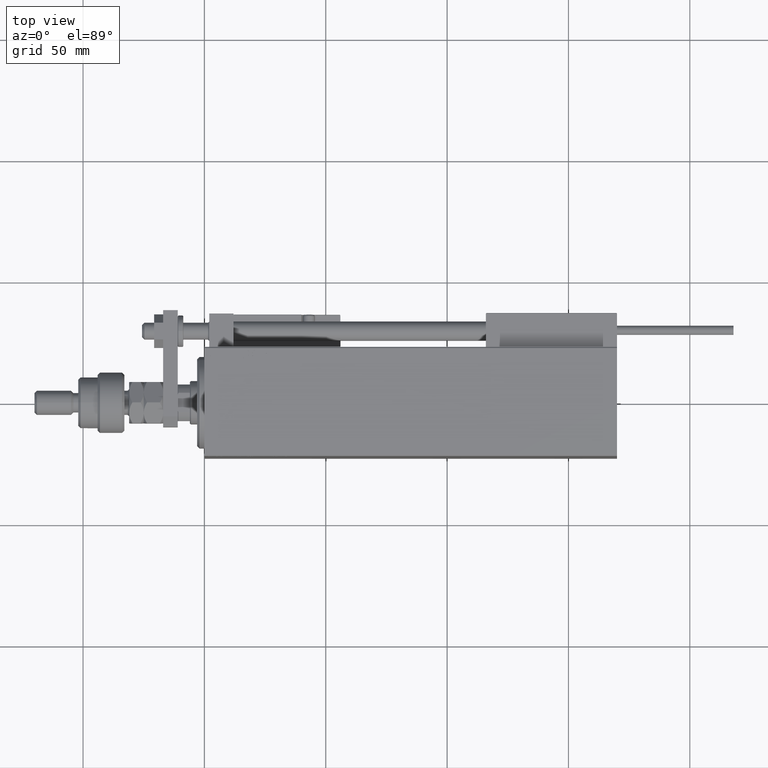
[diagram: clean part render]
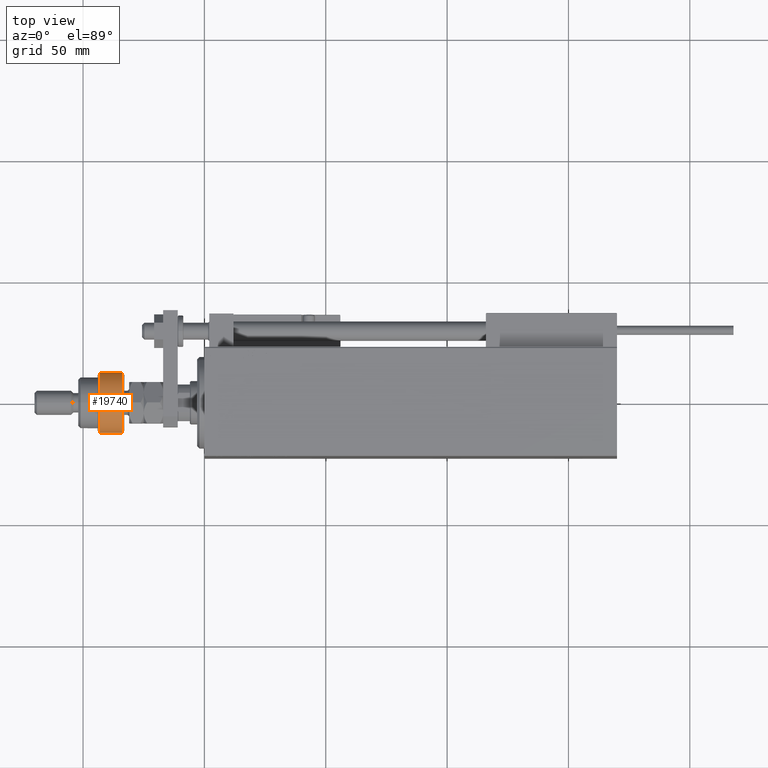
[diagram: same view with one face highlighted and labeled with its STEP entity id]
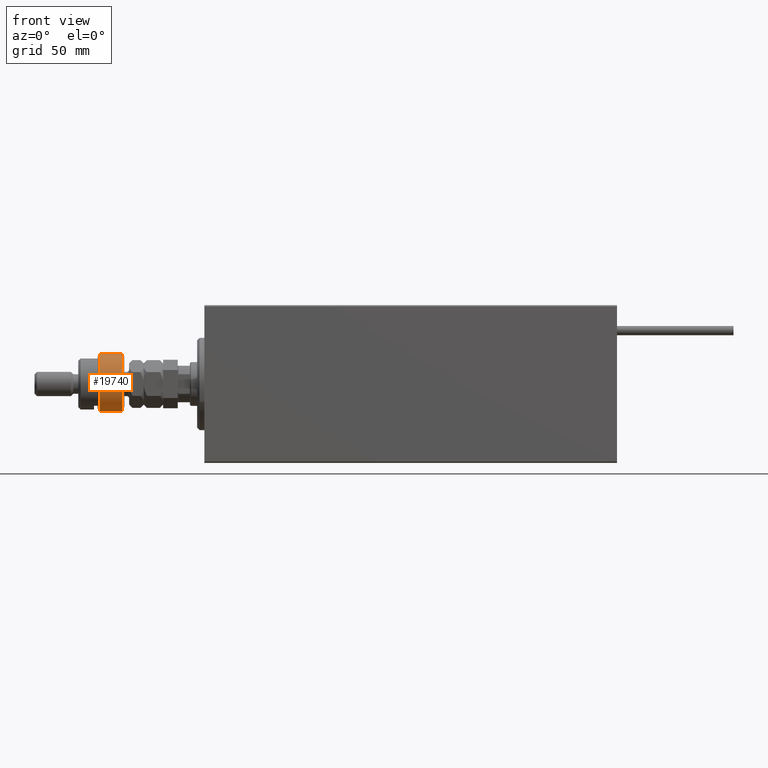
[diagram: same view with one face highlighted and labeled with its STEP entity id]
A machine part, top view. The second image highlights one B-rep face of the part: STEP entity #19740.
A second angle (front view) of the same face is appended — the face is thin or edge-on in the first view.
In plain terms, the highlighted cylindrical surface (edge-blend (fillet) strip) has radius 12.5 mm, axis along (1, -0, -0).
Its self-contained STEP definition (entity closure, byte-faithful):
#363 = CARTESIAN_POINT ( 'NONE',  ( 0.000000000000000000, 0.000000000000000000, 0.9999999999999956701 ) ) ;
#750 = CARTESIAN_POINT ( 'NONE',  ( 12.50000000000000000, 0.000000000000000000, 0.9999999999999956701 ) ) ;
#1005 = DIRECTION ( 'NONE',  ( -0.000000000000000000, -0.000000000000000000, 1.000000000000000000 ) ) ;
#1104 = CIRCLE ( 'NONE', #37024, 12.50000000000000000 ) ;
#1465 = EDGE_CURVE ( 'NONE', #47761, #16571, #4799, .T. ) ;
#2354 = DIRECTION ( 'NONE',  ( 1.000000000000000000, 0.000000000000000000, 0.000000000000000000 ) ) ;
#4544 = FACE_OUTER_BOUND ( 'NONE', #16334, .T. ) ;
#4799 = CIRCLE ( 'NONE', #23657, 12.50000000000000000 ) ;
#7681 = AXIS2_PLACEMENT_3D ( 'NONE', #363, #37061, #31773 ) ;
#9366 = CARTESIAN_POINT ( 'NONE',  ( 0.000000000000000000, 0.000000000000000000, 11.00000000000000000 ) ) ;
#9587 = DIRECTION ( 'NONE',  ( 1.000000000000000000, 0.000000000000000000, 0.000000000000000000 ) ) ;
#13125 = DIRECTION ( 'NONE',  ( -0.000000000000000000, -0.000000000000000000, -1.000000000000000000 ) ) ;
#13231 = EDGE_CURVE ( 'NONE', #16571, #41941, #21355, .T. ) ;
#14353 = LINE ( 'NONE', #43551, #28990 ) ;
#14377 = LINE ( 'NONE', #38496, #42731 ) ;
#16334 = EDGE_LOOP ( 'NONE', ( #43208, #47144, #44210, #40939, #25035 ) ) ;
#16571 = VERTEX_POINT ( 'NONE', #750 ) ;
#16817 = CARTESIAN_POINT ( 'NONE',  ( -11.22497216032182443, 5.500000000000000000, 0.9999999999999956701 ) ) ;
#17397 = DIRECTION ( 'NONE',  ( -1.000000000000000000, 0.000000000000000000, 0.000000000000000000 ) ) ;
#19740 = ADVANCED_FACE ( 'NONE', ( #4544 ), #38020, .T. ) ;
#21355 = CIRCLE ( 'NONE', #7681, 12.50000000000000000 ) ;
#23657 = AXIS2_PLACEMENT_3D ( 'NONE', #37701, #1005, #9587 ) ;
#24628 = EDGE_CURVE ( 'NONE', #45836, #41941, #14353, .T. ) ;
#25035 = ORIENTED_EDGE ( 'NONE', *, *, #13231, .T. ) ;
#27835 = DIRECTION ( 'NONE',  ( 0.000000000000000000, 0.000000000000000000, -1.000000000000000000 ) ) ;
#28990 = VECTOR ( 'NONE', #30719, 1000.000000000000000 ) ;
#30719 = DIRECTION ( 'NONE',  ( -0.000000000000000000, -0.000000000000000000, -1.000000000000000000 ) ) ;
#31773 = DIRECTION ( 'NONE',  ( 1.000000000000000000, 0.000000000000000000, 0.000000000000000000 ) ) ;
#32055 = EDGE_CURVE ( 'NONE', #42186, #47761, #14377, .T. ) ;
#33688 = CARTESIAN_POINT ( 'NONE',  ( -11.22497216032182088, -5.500000000000007105, 0.9999999999999956701 ) ) ;
#34731 = DIRECTION ( 'NONE',  ( -0.000000000000000000, -0.000000000000000000, -1.000000000000000000 ) ) ;
#36916 = AXIS2_PLACEMENT_3D ( 'NONE', #9366, #13125, #17397 ) ;
#37024 = AXIS2_PLACEMENT_3D ( 'NONE', #43612, #27835, #2354 ) ;
#37061 = DIRECTION ( 'NONE',  ( -0.000000000000000000, -0.000000000000000000, 1.000000000000000000 ) ) ;
#37701 = CARTESIAN_POINT ( 'NONE',  ( 0.000000000000000000, 0.000000000000000000, 0.9999999999999956701 ) ) ;
#38020 = CYLINDRICAL_SURFACE ( 'NONE', #36916, 12.50000000000000000 ) ;
#38496 = CARTESIAN_POINT ( 'NONE',  ( -11.22497216032182088, -5.500000000000007105, 12.50000000000000000 ) ) ;
#38809 = EDGE_CURVE ( 'NONE', #45836, #42186, #1104, .T. ) ;
#40939 = ORIENTED_EDGE ( 'NONE', *, *, #1465, .T. ) ;
#41941 = VERTEX_POINT ( 'NONE', #16817 ) ;
#42186 = VERTEX_POINT ( 'NONE', #43590 ) ;
#42731 = VECTOR ( 'NONE', #34731, 1000.000000000000000 ) ;
#43208 = ORIENTED_EDGE ( 'NONE', *, *, #24628, .F. ) ;
#43551 = CARTESIAN_POINT ( 'NONE',  ( -11.22497216032182443, 5.500000000000000000, 12.50000000000000000 ) ) ;
#43590 = CARTESIAN_POINT ( 'NONE',  ( -11.22497216032182088, -5.500000000000007105, 10.00000000000000000 ) ) ;
#43612 = CARTESIAN_POINT ( 'NONE',  ( 0.000000000000000000, 0.000000000000000000, 10.00000000000000000 ) ) ;
#44210 = ORIENTED_EDGE ( 'NONE', *, *, #32055, .T. ) ;
#45836 = VERTEX_POINT ( 'NONE', #46799 ) ;
#46799 = CARTESIAN_POINT ( 'NONE',  ( -11.22497216032182443, 5.500000000000000000, 10.00000000000000000 ) ) ;
#47144 = ORIENTED_EDGE ( 'NONE', *, *, #38809, .T. ) ;
#47761 = VERTEX_POINT ( 'NONE', #33688 ) ;